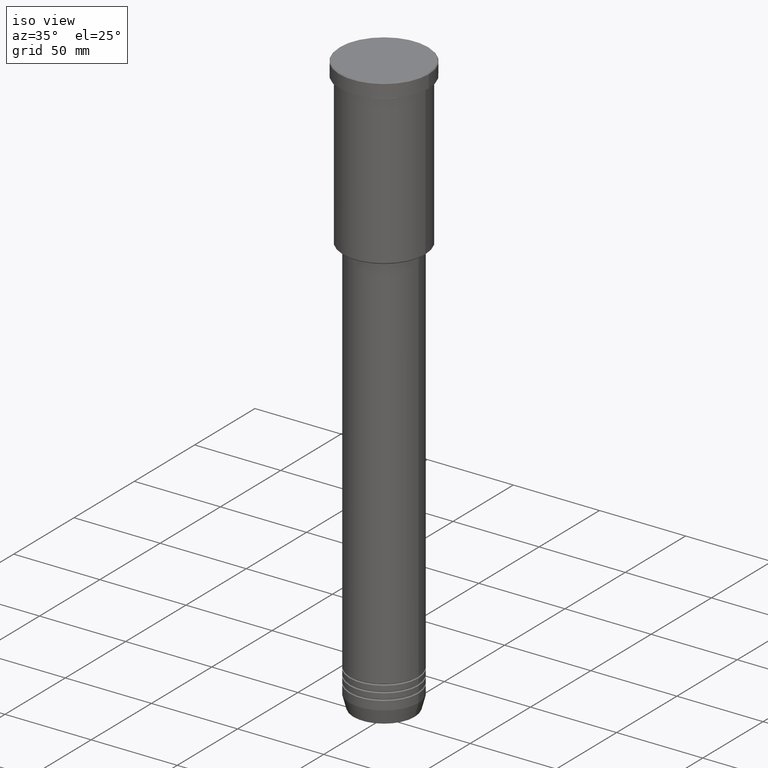
[diagram: clean part render]
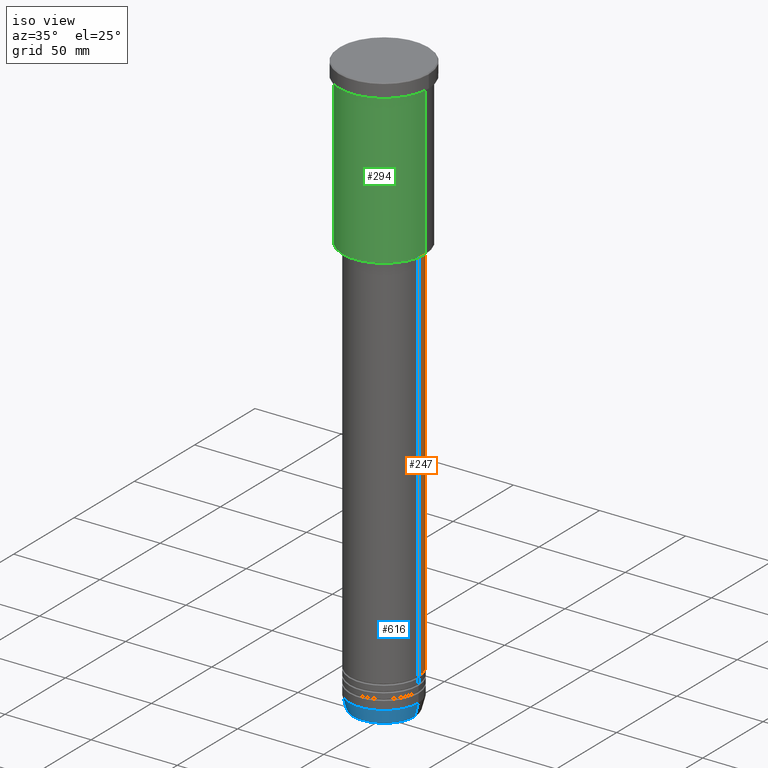
[diagram: same view with three faces highlighted in distinct colors, each labeled with its STEP entity id]
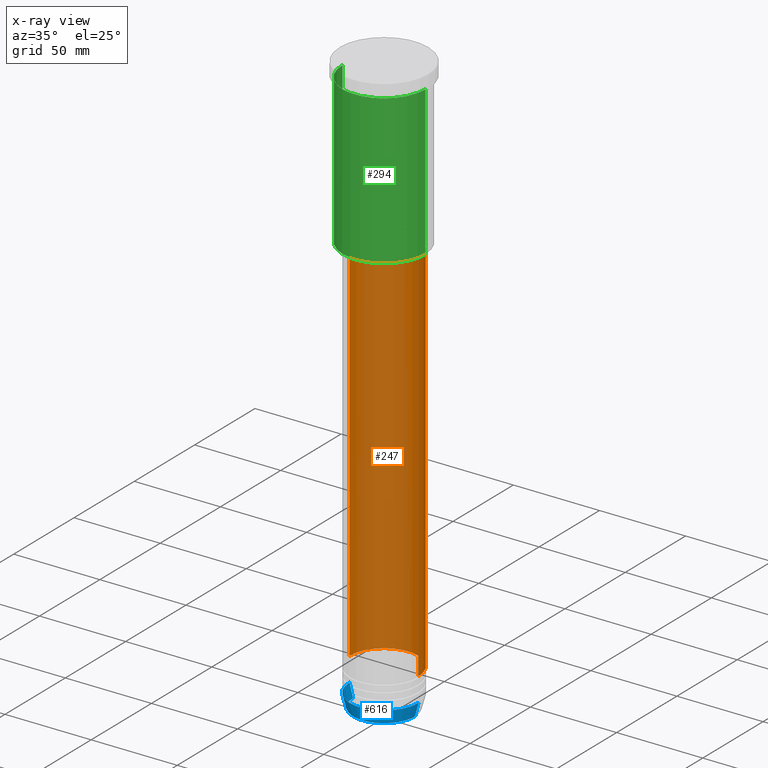
[diagram: x-ray of the same camera — body ghosted, the three highlighted faces saturated]
A machine part, iso view with three faces highlighted in distinct colors.
The next image is the same camera in x-ray (body ghosted, the three faces saturated) — at least one of them is partly hidden behind the body in this view.
Their STEP definitions:

[orange] entity #247 — the highlighted cylindrical surface (partial cylindrical patch) has radius 20 mm, axis along (-0, -0, 1).
#18 = CARTESIAN_POINT ( 'NONE',  ( 0.000000000000000000, 0.000000000000000000, -96.99999999999994316 ) ) ;
#50 = FACE_OUTER_BOUND ( 'NONE', #360, .T. ) ;
#97 = ORIENTED_EDGE ( 'NONE', *, *, #685, .T. ) ;
#131 = DIRECTION ( 'NONE',  ( -0.000000000000000000, -0.000000000000000000, 1.000000000000000000 ) ) ;
#176 = VERTEX_POINT ( 'NONE', #323 ) ;
#206 = CIRCLE ( 'NONE', #427, 20.00000000000000355 ) ;
#226 = CARTESIAN_POINT ( 'NONE',  ( -20.00000000000000355, 2.449293598294706907E-15, 0.000000000000000000 ) ) ;
#233 = CYLINDRICAL_SURFACE ( 'NONE', #611, 20.00000000000000355 ) ;
#247 = ADVANCED_FACE ( 'NONE', ( #50 ), #233, .T. ) ;
#249 = CARTESIAN_POINT ( 'NONE',  ( -20.00000000000000355, 2.449293598294706907E-15, -96.99999999999994316 ) ) ;
#292 = ORIENTED_EDGE ( 'NONE', *, *, #925, .T. ) ;
#323 = CARTESIAN_POINT ( 'NONE',  ( -20.00000000000000355, 2.449293598294706907E-15, -318.0000000000000568 ) ) ;
#359 = DIRECTION ( 'NONE',  ( 1.000000000000000000, 0.000000000000000000, 0.000000000000000000 ) ) ;
#360 = EDGE_LOOP ( 'NONE', ( #97, #292, #441, #1085 ) ) ;
#368 = VERTEX_POINT ( 'NONE', #973 ) ;
#427 = AXIS2_PLACEMENT_3D ( 'NONE', #18, #749, #469 ) ;
#441 = ORIENTED_EDGE ( 'NONE', *, *, #482, .F. ) ;
#469 = DIRECTION ( 'NONE',  ( 1.000000000000000000, 0.000000000000000000, 0.000000000000000000 ) ) ;
#482 = EDGE_CURVE ( 'NONE', #368, #736, #206, .T. ) ;
#514 = EDGE_CURVE ( 'NONE', #530, #368, #728, .T. ) ;
#530 = VERTEX_POINT ( 'NONE', #1015 ) ;
#570 = DIRECTION ( 'NONE',  ( -0.000000000000000000, -0.000000000000000000, 1.000000000000000000 ) ) ;
#611 = AXIS2_PLACEMENT_3D ( 'NONE', #1145, #131, #966 ) ;
#675 = LINE ( 'NONE', #226, #1174 ) ;
#685 = EDGE_CURVE ( 'NONE', #530, #176, #1116, .T. ) ;
#708 = CARTESIAN_POINT ( 'NONE',  ( 0.000000000000000000, 0.000000000000000000, -318.0000000000000568 ) ) ;
#728 = LINE ( 'NONE', #929, #1169 ) ;
#736 = VERTEX_POINT ( 'NONE', #249 ) ;
#749 = DIRECTION ( 'NONE',  ( -0.000000000000000000, -0.000000000000000000, 1.000000000000000000 ) ) ;
#863 = AXIS2_PLACEMENT_3D ( 'NONE', #708, #878, #359 ) ;
#878 = DIRECTION ( 'NONE',  ( -0.000000000000000000, -0.000000000000000000, 1.000000000000000000 ) ) ;
#925 = EDGE_CURVE ( 'NONE', #176, #736, #675, .T. ) ;
#929 = CARTESIAN_POINT ( 'NONE',  ( 20.00000000000000355, 0.000000000000000000, 0.000000000000000000 ) ) ;
#966 = DIRECTION ( 'NONE',  ( 1.000000000000000000, 0.000000000000000000, 0.000000000000000000 ) ) ;
#973 = CARTESIAN_POINT ( 'NONE',  ( 20.00000000000000355, 0.000000000000000000, -96.99999999999994316 ) ) ;
#1015 = CARTESIAN_POINT ( 'NONE',  ( 20.00000000000000355, 0.000000000000000000, -318.0000000000000568 ) ) ;
#1085 = ORIENTED_EDGE ( 'NONE', *, *, #514, .F. ) ;
#1116 = CIRCLE ( 'NONE', #863, 20.00000000000000355 ) ;
#1125 = DIRECTION ( 'NONE',  ( -0.000000000000000000, -0.000000000000000000, 1.000000000000000000 ) ) ;
#1145 = CARTESIAN_POINT ( 'NONE',  ( 0.000000000000000000, 0.000000000000000000, 0.000000000000000000 ) ) ;
#1169 = VECTOR ( 'NONE', #570, 1000.000000000000000 ) ;
#1174 = VECTOR ( 'NONE', #1125, 1000.000000000000000 ) ;

[blue] entity #616 — the highlighted conical surface has half-angle 15 deg.
#56 = CARTESIAN_POINT ( 'NONE',  ( -20.00000000000000355, 2.449293598294706907E-15, -332.0000000000000000 ) ) ;
#75 = DIRECTION ( 'NONE',  ( 1.000000000000000000, 0.000000000000000000, 0.000000000000000000 ) ) ;
#101 = VERTEX_POINT ( 'NONE', #719 ) ;
#111 = CONICAL_SURFACE ( 'NONE', #150, 20.00000000000000355, 0.2617993877991499629 ) ;
#147 = VECTOR ( 'NONE', #1031, 1000.000000000000114 ) ;
#148 = CARTESIAN_POINT ( 'NONE',  ( 0.000000000000000000, 0.000000000000000000, -332.0000000000000000 ) ) ;
#150 = AXIS2_PLACEMENT_3D ( 'NONE', #345, #904, #75 ) ;
#163 = AXIS2_PLACEMENT_3D ( 'NONE', #420, #687, #408 ) ;
#192 = ORIENTED_EDGE ( 'NONE', *, *, #252, .F. ) ;
#196 = VERTEX_POINT ( 'NONE', #576 ) ;
#199 = EDGE_LOOP ( 'NONE', ( #192, #1024, #635, #822 ) ) ;
#225 = DIRECTION ( 'NONE',  ( -0.000000000000000000, -0.000000000000000000, 1.000000000000000000 ) ) ;
#229 = EDGE_CURVE ( 'NONE', #196, #284, #656, .T. ) ;
#252 = EDGE_CURVE ( 'NONE', #101, #196, #331, .T. ) ;
#263 = EDGE_CURVE ( 'NONE', #101, #755, #411, .T. ) ;
#284 = VERTEX_POINT ( 'NONE', #483 ) ;
#317 = EDGE_CURVE ( 'NONE', #755, #284, #337, .T. ) ;
#331 = LINE ( 'NONE', #56, #147 ) ;
#337 = LINE ( 'NONE', #792, #1093 ) ;
#345 = CARTESIAN_POINT ( 'NONE',  ( 0.000000000000000000, 0.000000000000000000, -332.0000000000000000 ) ) ;
#403 = DIRECTION ( 'NONE',  ( 1.000000000000000000, 0.000000000000000000, 0.000000000000000000 ) ) ;
#408 = DIRECTION ( 'NONE',  ( 1.000000000000000000, 0.000000000000000000, 0.000000000000000000 ) ) ;
#411 = CIRCLE ( 'NONE', #163, 17.95570587970608045 ) ;
#420 = CARTESIAN_POINT ( 'NONE',  ( 0.000000000000000000, 0.000000000000000000, -339.6294095225512706 ) ) ;
#483 = CARTESIAN_POINT ( 'NONE',  ( 20.00000000000000355, 0.000000000000000000, -332.0000000000000000 ) ) ;
#510 = DIRECTION ( 'NONE',  ( 0.2588190451025212391, 0.000000000000000000, 0.9659258262890680902 ) ) ;
#520 = AXIS2_PLACEMENT_3D ( 'NONE', #148, #225, #403 ) ;
#576 = CARTESIAN_POINT ( 'NONE',  ( -20.00000000000000355, 2.449293598294706907E-15, -332.0000000000000000 ) ) ;
#616 = ADVANCED_FACE ( 'NONE', ( #1086 ), #111, .T. ) ;
#635 = ORIENTED_EDGE ( 'NONE', *, *, #317, .T. ) ;
#656 = CIRCLE ( 'NONE', #520, 20.00000000000000355 ) ;
#687 = DIRECTION ( 'NONE',  ( -0.000000000000000000, -0.000000000000000000, 1.000000000000000000 ) ) ;
#719 = CARTESIAN_POINT ( 'NONE',  ( -17.95570587970608045, 2.324116685748021371E-15, -339.6294095225512706 ) ) ;
#755 = VERTEX_POINT ( 'NONE', #887 ) ;
#792 = CARTESIAN_POINT ( 'NONE',  ( 20.00000000000000355, 0.000000000000000000, -332.0000000000000000 ) ) ;
#822 = ORIENTED_EDGE ( 'NONE', *, *, #229, .F. ) ;
#887 = CARTESIAN_POINT ( 'NONE',  ( 17.95570587970608045, 0.000000000000000000, -339.6294095225512706 ) ) ;
#904 = DIRECTION ( 'NONE',  ( -0.000000000000000000, -0.000000000000000000, 1.000000000000000000 ) ) ;
#1024 = ORIENTED_EDGE ( 'NONE', *, *, #263, .T. ) ;
#1031 = DIRECTION ( 'NONE',  ( -0.2588190451025212391, 3.169619151431771721E-17, 0.9659258262890680902 ) ) ;
#1086 = FACE_OUTER_BOUND ( 'NONE', #199, .T. ) ;
#1093 = VECTOR ( 'NONE', #510, 1000.000000000000114 ) ;

[green] entity #294 — the highlighted cylindrical surface (partial cylindrical patch) has radius 24 mm, axis along (-0, -0, 1).
#41 = CARTESIAN_POINT ( 'NONE',  ( 24.00000000000000000, 0.000000000000000000, -95.50000000000000000 ) ) ;
#71 = DIRECTION ( 'NONE',  ( -0.000000000000000000, -0.000000000000000000, 1.000000000000000000 ) ) ;
#108 = VERTEX_POINT ( 'NONE', #715 ) ;
#130 = CIRCLE ( 'NONE', #1153, 24.00000000000000000 ) ;
#134 = LINE ( 'NONE', #943, #1135 ) ;
#137 = VERTEX_POINT ( 'NONE', #618 ) ;
#144 = DIRECTION ( 'NONE',  ( -0.000000000000000000, -0.000000000000000000, 1.000000000000000000 ) ) ;
#248 = DIRECTION ( 'NONE',  ( 1.000000000000000000, 0.000000000000000000, 0.000000000000000000 ) ) ;
#256 = DIRECTION ( 'NONE',  ( -0.000000000000000000, -0.000000000000000000, 1.000000000000000000 ) ) ;
#262 = EDGE_LOOP ( 'NONE', ( #1029, #1089, #891, #992 ) ) ;
#279 = DIRECTION ( 'NONE',  ( -0.000000000000000000, -0.000000000000000000, 1.000000000000000000 ) ) ;
#294 = ADVANCED_FACE ( 'NONE', ( #308 ), #668, .T. ) ;
#308 = FACE_OUTER_BOUND ( 'NONE', #262, .T. ) ;
#314 = DIRECTION ( 'NONE',  ( 1.000000000000000000, 0.000000000000000000, 0.000000000000000000 ) ) ;
#342 = CARTESIAN_POINT ( 'NONE',  ( 0.000000000000000000, 0.000000000000000000, 0.000000000000000000 ) ) ;
#357 = AXIS2_PLACEMENT_3D ( 'NONE', #1129, #503, #314 ) ;
#457 = EDGE_CURVE ( 'NONE', #137, #753, #1107, .T. ) ;
#503 = DIRECTION ( 'NONE',  ( -0.000000000000000000, -0.000000000000000000, 1.000000000000000000 ) ) ;
#506 = CIRCLE ( 'NONE', #357, 24.00000000000000000 ) ;
#601 = CARTESIAN_POINT ( 'NONE',  ( -24.00000000000000000, 2.939152317953647894E-15, -8.999999999999994671 ) ) ;
#618 = CARTESIAN_POINT ( 'NONE',  ( -24.00000000000000000, 2.939152317953647894E-15, -95.50000000000000000 ) ) ;
#630 = VECTOR ( 'NONE', #279, 1000.000000000000000 ) ;
#645 = CARTESIAN_POINT ( 'NONE',  ( -24.00000000000000000, 2.939152317953647894E-15, 0.000000000000000000 ) ) ;
#668 = CYLINDRICAL_SURFACE ( 'NONE', #1151, 24.00000000000000000 ) ;
#715 = CARTESIAN_POINT ( 'NONE',  ( 24.00000000000000000, 0.000000000000000000, -8.999999999999994671 ) ) ;
#753 = VERTEX_POINT ( 'NONE', #601 ) ;
#794 = EDGE_CURVE ( 'NONE', #137, #1111, #130, .T. ) ;
#854 = EDGE_CURVE ( 'NONE', #1111, #108, #134, .T. ) ;
#891 = ORIENTED_EDGE ( 'NONE', *, *, #854, .T. ) ;
#943 = CARTESIAN_POINT ( 'NONE',  ( 24.00000000000000000, 0.000000000000000000, 0.000000000000000000 ) ) ;
#982 = DIRECTION ( 'NONE',  ( -1.000000000000000000, 0.000000000000000000, 0.000000000000000000 ) ) ;
#988 = EDGE_CURVE ( 'NONE', #753, #108, #506, .T. ) ;
#992 = ORIENTED_EDGE ( 'NONE', *, *, #988, .F. ) ;
#1029 = ORIENTED_EDGE ( 'NONE', *, *, #457, .F. ) ;
#1089 = ORIENTED_EDGE ( 'NONE', *, *, #794, .T. ) ;
#1107 = LINE ( 'NONE', #645, #630 ) ;
#1111 = VERTEX_POINT ( 'NONE', #41 ) ;
#1129 = CARTESIAN_POINT ( 'NONE',  ( 0.000000000000000000, 0.000000000000000000, -8.999999999999994671 ) ) ;
#1135 = VECTOR ( 'NONE', #144, 1000.000000000000000 ) ;
#1151 = AXIS2_PLACEMENT_3D ( 'NONE', #342, #71, #248 ) ;
#1153 = AXIS2_PLACEMENT_3D ( 'NONE', #1166, #256, #982 ) ;
#1166 = CARTESIAN_POINT ( 'NONE',  ( 0.000000000000000000, 0.000000000000000000, -95.50000000000000000 ) ) ;